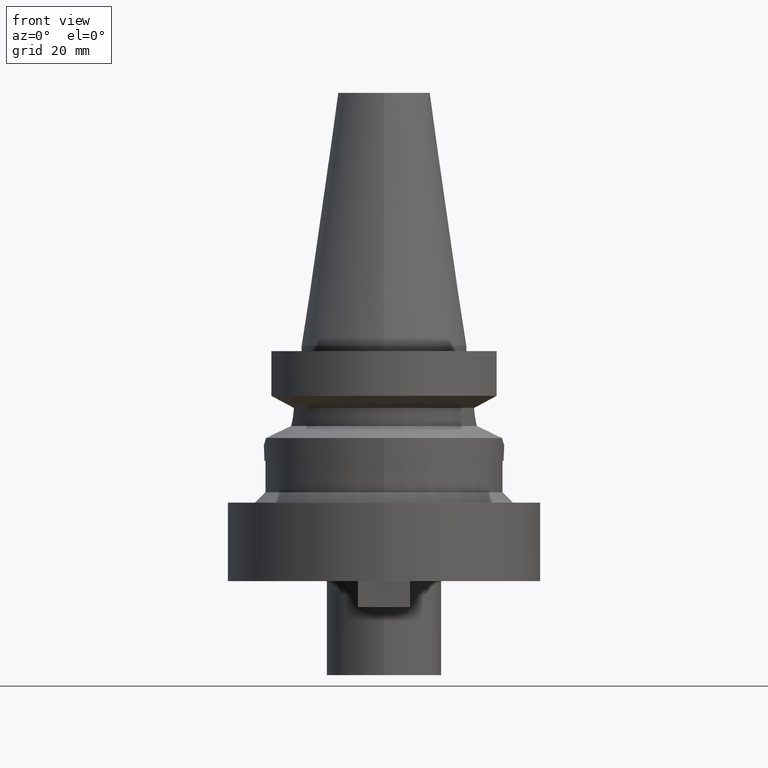
[diagram: clean part render]
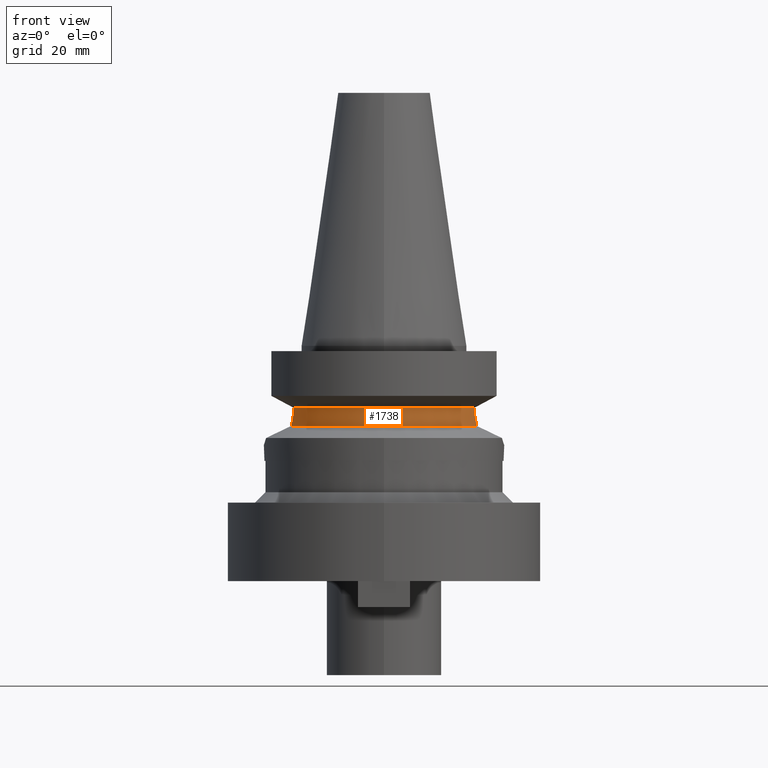
[diagram: same view with one face highlighted and labeled with its STEP entity id]
A machine part, front view. The second image highlights one B-rep face of the part: STEP entity #1738.
In plain terms, the highlighted cylindrical surface (partial cylindrical patch) has radius 19 mm, axis along (0, 0, -1).
Its self-contained STEP definition (entity closure, byte-faithful):
#243=CARTESIAN_POINT('',(0.E0,0.E0,-1.187660944647E1));
#244=DIRECTION('',(0.E0,0.E0,-1.E0));
#245=DIRECTION('',(9.071218755694E-1,-4.208680349747E-1,0.E0));
#246=AXIS2_PLACEMENT_3D('',#243,#244,#245);
#251=CARTESIAN_POINT('',(0.E0,0.E0,-1.187660944647E1));
#252=DIRECTION('',(0.E0,0.E0,-1.E0));
#253=DIRECTION('',(0.E0,-1.E0,0.E0));
#254=AXIS2_PLACEMENT_3D('',#251,#252,#253);
#259=CARTESIAN_POINT('',(-1.723531622822E1,-7.996491147958E0,
-1.187660607717E1));
#435=CARTESIAN_POINT('',(-1.775736593456E1,-6.758398853744E0,
-1.532339055353E1));
#440=CARTESIAN_POINT('',(0.E0,0.E0,-1.532339055353E1));
#441=DIRECTION('',(0.E0,0.E0,1.E0));
#442=DIRECTION('',(-9.345982070819E-1,-3.557052028286E-1,0.E0));
#443=AXIS2_PLACEMENT_3D('',#440,#441,#442);
#448=CARTESIAN_POINT('',(0.E0,0.E0,-1.532339055353E1));
#449=DIRECTION('',(0.E0,0.E0,1.E0));
#450=DIRECTION('',(0.E0,-1.E0,0.E0));
#451=AXIS2_PLACEMENT_3D('',#448,#449,#450);
#456=CARTESIAN_POINT('',(1.775736593456E1,-6.758398853744E0,-1.532339055353E1));
#483=CARTESIAN_POINT('',(-1.775736593456E1,-6.758398853744E0,
-1.532339055353E1));
#484=CARTESIAN_POINT('',(-1.766904681992E1,-6.990453053498E0,
-1.496478666979E1));
#485=CARTESIAN_POINT('',(-1.750808050303E1,-7.386758691612E0,
-1.422913334751E1));
#486=CARTESIAN_POINT('',(-1.732661211443E1,-7.799205680756E0,
-1.306410032631E1));
#487=CARTESIAN_POINT('',(-1.725678434349E1,-7.950219643905E0,
-1.227592623803E1));
#488=CARTESIAN_POINT('',(-1.723531622822E1,-7.996491147958E0,
-1.187660607717E1));
#493=CARTESIAN_POINT('',(1.723531135313E1,-7.996501749112E0,-1.187660739354E1));
#494=CARTESIAN_POINT('',(1.725679532634E1,-7.950196065485E0,-1.227622079597E1));
#495=CARTESIAN_POINT('',(1.732669137076E1,-7.799032908327E0,-1.306476899188E1));
#496=CARTESIAN_POINT('',(1.750819631012E1,-7.386484310606E0,-1.422971569773E1));
#497=CARTESIAN_POINT('',(1.766910334109E1,-6.990304546852E0,-1.496501616384E1));
#498=CARTESIAN_POINT('',(1.775736593456E1,-6.758398853744E0,-1.532339055353E1));
#1316=VERTEX_POINT('',#456);
#1317=VERTEX_POINT('',#493);
#1330=VERTEX_POINT('',#435);
#1331=CARTESIAN_POINT('',(0.E0,-1.9E1,-1.532339055353E1));
#1332=VERTEX_POINT('',#1331);
#1347=VERTEX_POINT('',#259);
#1348=CARTESIAN_POINT('',(0.E0,-1.9E1,-1.187660944647E1));
#1349=VERTEX_POINT('',#1348);
#1724=CARTESIAN_POINT('',(0.E0,0.E0,5.397E1));
#1725=DIRECTION('',(0.E0,0.E0,-1.E0));
#1726=DIRECTION('',(0.E0,-1.E0,0.E0));
#1727=AXIS2_PLACEMENT_3D('',#1724,#1725,#1726);
#1728=CYLINDRICAL_SURFACE('',#1727,1.9E1);
#1729=ORIENTED_EDGE('',*,*,#1700,.T.);
#1730=ORIENTED_EDGE('',*,*,#1560,.F.);
#1731=ORIENTED_EDGE('',*,*,#1558,.F.);
#1733=ORIENTED_EDGE('',*,*,#1732,.T.);
#1734=ORIENTED_EDGE('',*,*,#1713,.F.);
#1735=ORIENTED_EDGE('',*,*,#1711,.F.);
#1736=EDGE_LOOP('',(#1729,#1730,#1731,#1733,#1734,#1735));
#1737=FACE_OUTER_BOUND('',#1736,.F.);
#247=CIRCLE('',#246,1.9E1);
#255=CIRCLE('',#254,1.9E1);
#444=CIRCLE('',#443,1.9E1);
#452=CIRCLE('',#451,1.9E1);
#489=B_SPLINE_CURVE_WITH_KNOTS('',3,(#483,#484,#485,#486,#487,#488),
.UNSPECIFIED.,.F.,.F.,(4,1,1,4),(0.E0,3.333333333333E-1,6.666666666667E-1,1.E0),
.UNSPECIFIED.);
#499=B_SPLINE_CURVE_WITH_KNOTS('',3,(#493,#494,#495,#496,#497,#498),
.UNSPECIFIED.,.F.,.F.,(4,1,1,4),(0.E0,3.333333333333E-1,6.666666666667E-1,1.E0),
.UNSPECIFIED.);
#1558=EDGE_CURVE('',#1317,#1349,#247,.T.);
#1560=EDGE_CURVE('',#1349,#1347,#255,.T.);
#1700=EDGE_CURVE('',#1330,#1347,#489,.T.);
#1711=EDGE_CURVE('',#1330,#1332,#444,.T.);
#1713=EDGE_CURVE('',#1332,#1316,#452,.T.);
#1732=EDGE_CURVE('',#1317,#1316,#499,.T.);
#1738=ADVANCED_FACE('',(#1737),#1728,.T.);